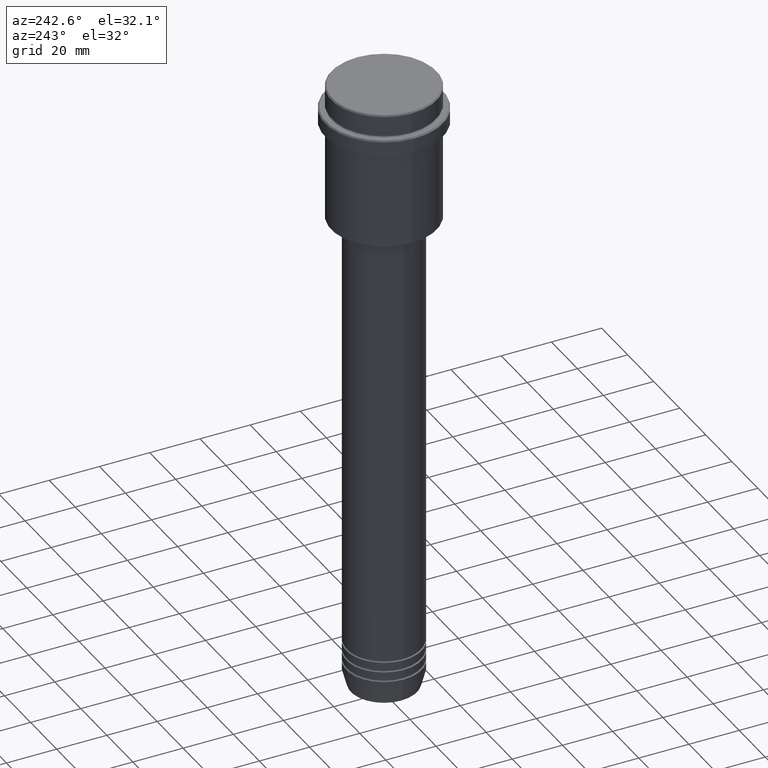
[diagram: clean part render]
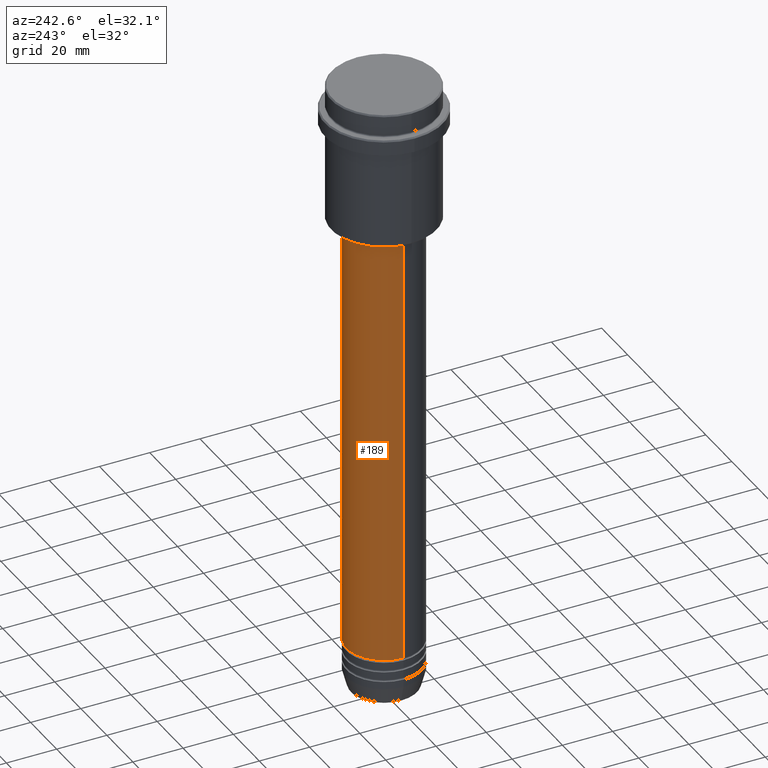
[diagram: same view with one face highlighted and labeled with its STEP entity id]
A machine part, auxiliary view. The second image highlights one B-rep face of the part: STEP entity #189.
In plain terms, the highlighted cylindrical surface (partial cylindrical patch) has radius 15 mm, axis along (-0, -0, 1).
Its self-contained STEP definition (entity closure, byte-faithful):
#4 = ORIENTED_EDGE ( 'NONE', *, *, #683, .T. ) ;
#33 = CARTESIAN_POINT ( 'NONE',  ( 0.000000000000000000, 0.000000000000000000, -56.00000000000000000 ) ) ;
#38 = EDGE_CURVE ( 'NONE', #279, #1163, #613, .T. ) ;
#40 = CARTESIAN_POINT ( 'NONE',  ( 15.00000000000000000, 0.000000000000000000, -56.00000000000000000 ) ) ;
#189 = ADVANCED_FACE ( 'NONE', ( #791 ), #646, .T. ) ;
#267 = DIRECTION ( 'NONE',  ( 1.000000000000000000, 0.000000000000000000, 0.000000000000000000 ) ) ;
#279 = VERTEX_POINT ( 'NONE', #1115 ) ;
#288 = VERTEX_POINT ( 'NONE', #1349 ) ;
#326 = AXIS2_PLACEMENT_3D ( 'NONE', #1406, #974, #526 ) ;
#347 = DIRECTION ( 'NONE',  ( -0.000000000000000000, -0.000000000000000000, 1.000000000000000000 ) ) ;
#351 = AXIS2_PLACEMENT_3D ( 'NONE', #904, #1334, #789 ) ;
#355 = ORIENTED_EDGE ( 'NONE', *, *, #889, .T. ) ;
#375 = AXIS2_PLACEMENT_3D ( 'NONE', #33, #347, #267 ) ;
#406 = DIRECTION ( 'NONE',  ( -0.000000000000000000, -0.000000000000000000, 1.000000000000000000 ) ) ;
#509 = VECTOR ( 'NONE', #406, 1000.000000000000000 ) ;
#526 = DIRECTION ( 'NONE',  ( 1.000000000000000000, 0.000000000000000000, 0.000000000000000000 ) ) ;
#613 = LINE ( 'NONE', #1382, #509 ) ;
#616 = LINE ( 'NONE', #719, #738 ) ;
#646 = CYLINDRICAL_SURFACE ( 'NONE', #326, 15.00000000000000000 ) ;
#649 = CIRCLE ( 'NONE', #375, 15.00000000000000000 ) ;
#657 = VERTEX_POINT ( 'NONE', #658 ) ;
#658 = CARTESIAN_POINT ( 'NONE',  ( -15.00000000000000000, 1.836970198721029589E-15, -56.00000000000000000 ) ) ;
#681 = EDGE_LOOP ( 'NONE', ( #4, #355, #1353, #961 ) ) ;
#683 = EDGE_CURVE ( 'NONE', #279, #288, #944, .T. ) ;
#719 = CARTESIAN_POINT ( 'NONE',  ( -15.00000000000000000, 1.836970198721029589E-15, 0.000000000000000000 ) ) ;
#738 = VECTOR ( 'NONE', #1057, 1000.000000000000000 ) ;
#789 = DIRECTION ( 'NONE',  ( 1.000000000000000000, 0.000000000000000000, 0.000000000000000000 ) ) ;
#791 = FACE_OUTER_BOUND ( 'NONE', #681, .T. ) ;
#889 = EDGE_CURVE ( 'NONE', #288, #657, #616, .T. ) ;
#904 = CARTESIAN_POINT ( 'NONE',  ( 0.000000000000000000, 0.000000000000000000, -230.9999999999998863 ) ) ;
#944 = CIRCLE ( 'NONE', #351, 15.00000000000000000 ) ;
#961 = ORIENTED_EDGE ( 'NONE', *, *, #38, .F. ) ;
#974 = DIRECTION ( 'NONE',  ( -0.000000000000000000, -0.000000000000000000, 1.000000000000000000 ) ) ;
#1057 = DIRECTION ( 'NONE',  ( -0.000000000000000000, -0.000000000000000000, 1.000000000000000000 ) ) ;
#1115 = CARTESIAN_POINT ( 'NONE',  ( 15.00000000000000000, 0.000000000000000000, -230.9999999999998863 ) ) ;
#1163 = VERTEX_POINT ( 'NONE', #40 ) ;
#1202 = EDGE_CURVE ( 'NONE', #1163, #657, #649, .T. ) ;
#1334 = DIRECTION ( 'NONE',  ( -0.000000000000000000, -0.000000000000000000, 1.000000000000000000 ) ) ;
#1349 = CARTESIAN_POINT ( 'NONE',  ( -15.00000000000000000, 1.836970198721029589E-15, -230.9999999999998863 ) ) ;
#1353 = ORIENTED_EDGE ( 'NONE', *, *, #1202, .F. ) ;
#1382 = CARTESIAN_POINT ( 'NONE',  ( 15.00000000000000000, 0.000000000000000000, 0.000000000000000000 ) ) ;
#1406 = CARTESIAN_POINT ( 'NONE',  ( 0.000000000000000000, 0.000000000000000000, 0.000000000000000000 ) ) ;